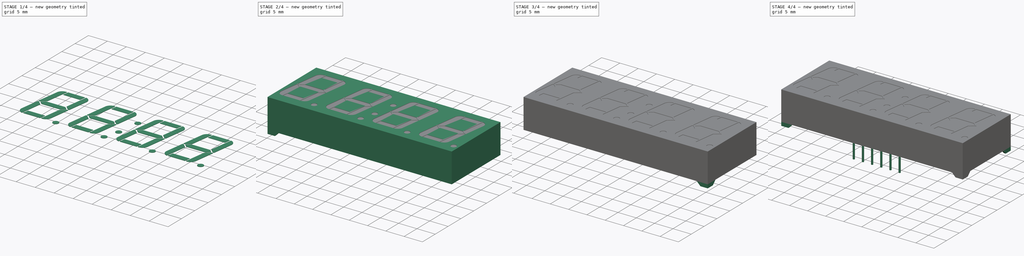
[diagram: build sequence overview — one tinted view per stage of 4, left to right]
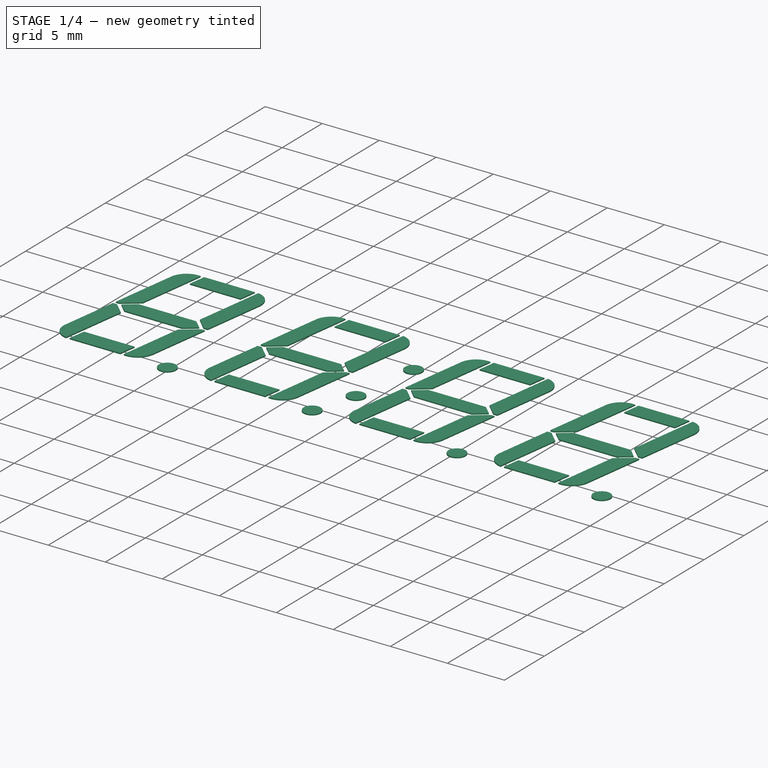
[diagram: stage 1 of 4 — iso view after this stage's code; geometry added in this stage tinted green]
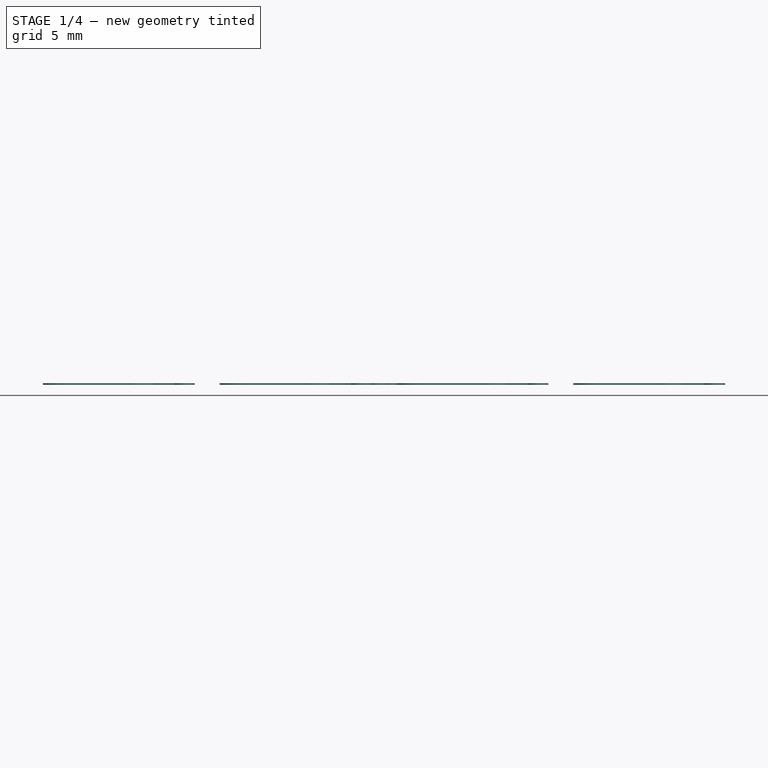
[diagram: stage 1 of 4 — front view after this stage's code; geometry added in this stage tinted green]
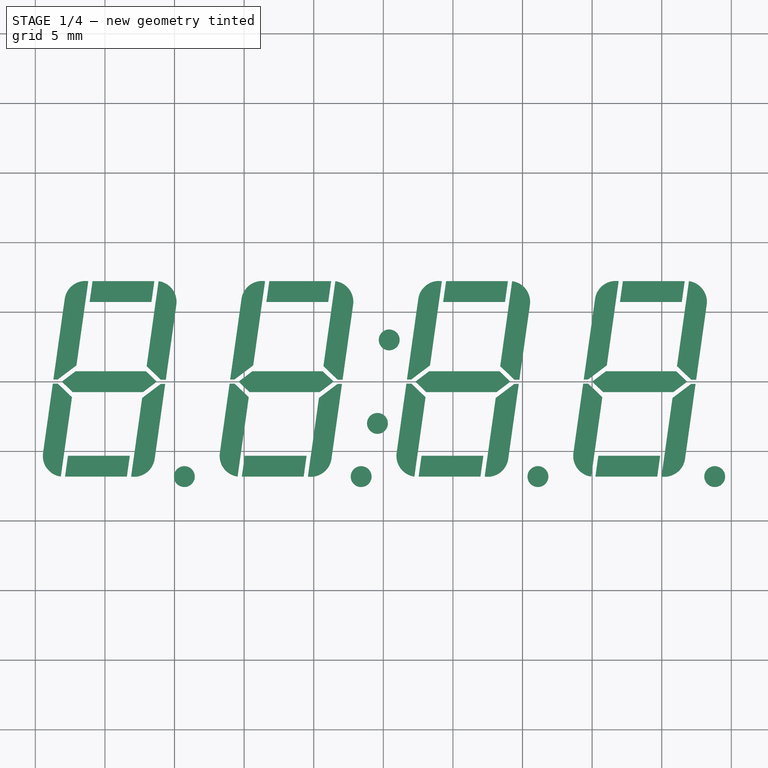
[diagram: stage 1 of 4 — top view after this stage's code; geometry added in this stage tinted green]
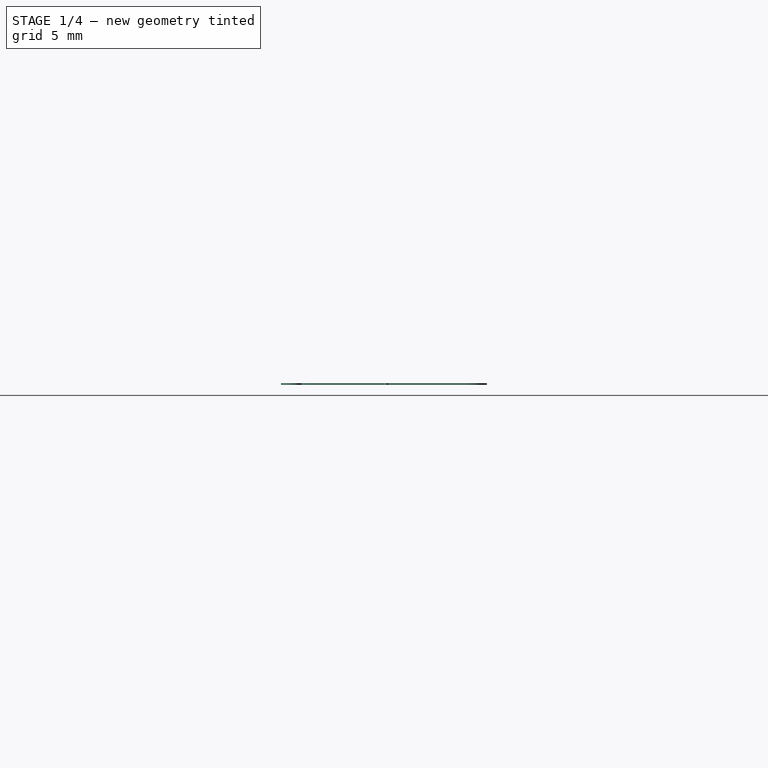
[diagram: stage 1 of 4 — right view after this stage's code; geometry added in this stage tinted green]
FCSTD DOCUMENT  (FreeCAD 0.16R4924 (Git))
Label: Cx56-12
Comment: A 3d model for Kingbright Cx-56-12xxx 7-segment LED Displays. \n\nDatasheet: http://www.kingbrightusa.com/images/catalog/SPEC/CA56-12EWA.pdf\n\nLicense information:\nhttp://www.gnu.org/licenses/gpl.ht... (+106 chars)
License: Dual licensed: GPL v3 or later and CC-by-SA 4.0
LicenseURL: http://www.gnu.org/licenses/gpl.html
objects: Sketcher::SketchObject×7, Part::Extrusion×4, Part::Mirroring×3, PartDesign::Pocket×2, Part::FeaturePython×2, Part::MultiFuse×2, PartDesign::Pad×1, Part::Cut×1
note: 25 computed .brp shape members not serialized (recipe doc carries the construction recipe); baked Part::Feature solids carry a one-line shape summary decoded from their .brp

FEATURE [Sketcher::SketchObject] Sketch
  sketch-geometry (7):
    g0: LineSegment StartX=25.15 StartY=9.5 StartZ=0 EndX=25.15 EndY=-9.5 EndZ=0
    g1: LineSegment StartX=25.15 StartY=-9.5 StartZ=0 EndX=-25.15 EndY=-9.5 EndZ=0
    g2: GeomPoint [constr] X=25.15 Y=9.5 Z=0
    g3: LineSegment StartX=-25.15 StartY=9.5 StartZ=0 EndX=25.15 EndY=9.5 EndZ=0
    g4: LineSegment StartX=-25.15 StartY=-9.5 StartZ=0 EndX=-25.15 EndY=9.5 EndZ=0
    g5: GeomPoint [constr] X=0 Y=9.5 Z=0
    g6: GeomPoint [constr] X=-25.15 Y=0 Z=0
  constraints (17):
    c: Coincident(g0,g1)
    c: Horizontal(g1)
    c: Vertical(g0)
    c: Distance(g1) = 50.3
    c: Distance(g0) = 19
    c: Coincident(g3,g2)
    c: Horizontal(g3)
    c: Vertical(g4)
    c: Coincident(g1,g4)
    c: Coincident(g4,g3)
    c: Coincident(g2,g0)
    c: PointOnObject(g5,g3)
    c: PointOnObject(g5,g-2)
    c: Symmetric(g3,g0,g5)
    c: PointOnObject(g6,g4)
    c: PointOnObject(g6,g-1)
    c: Symmetric(g1,g3,g6)
FEATURE [PartDesign::Pad] Pad  label="Base"
  Length = 8.1
  Length2 = 100
  Sketch = -> Sketch
  Type = 0
FEATURE [Sketcher::SketchObject] Sketch006
  Placement = pos=(0,0,8.1) rot=(0,0,1;0rad)
  Support = -> Pad [Face6]
  sketch-geometry (3):
    g0: Circle CenterX=0.421623 CenterY=3 CenterZ=0 NormalX=0 NormalY=0 NormalZ=1 Radius=0.75
    g1: Circle CenterX=-0.421623 CenterY=-3 CenterZ=0 NormalX=0 NormalY=0 NormalZ=1 Radius=0.75
    g2: LineSegment [constr] StartX=0 StartY=0 StartZ=0 EndX=0.421623 EndY=3 EndZ=0
  constraints (7):
    c: Symmetric(g1,g0,g-1)
    c: Radius(g0) = 0.75
    c: Equal(g0,g1)
    c: DistanceY(g0) = 3
    c: Coincident(g2,g-1)
    c: Coincident(g2,g0)
    c: Angle(g2,g-2) = 0.139626
FEATURE [Part::Extrusion] Extrude002  label="TimeDots"
  Base = -> Sketch006
  Dir = (0,0,-0.1)
  Solid = true
FEATURE [Part::FeaturePython] Array001  # Draft array (typed FeaturePython)
  Angle = 360
  ArrayType = 0
  Axis = (0,0,1)
  Base = -> Sketch001
  Center = (0,0,0)
  Fuse = false
  IntervalAxis = (0,0,0)
  IntervalX = (12.7,0,0)
  IntervalY = (0,1,0)
  IntervalZ = (0,0,0)
  NumberPolar = 1
  NumberX = 4
  NumberY = 1
  NumberZ = 1
  Placement = pos=(-12.7,0,0) rot=(0,0,1;0rad)
FEATURE [Part::Extrusion] Extrude003  label="Digits"
  Base = -> Array001
  Dir = (0,0,-0.1)
  Solid = true
FEATURE [Part::MultiFuse] Fusion  label="DisplayData"
  Shapes = -> [Extrude002,Extrude003]
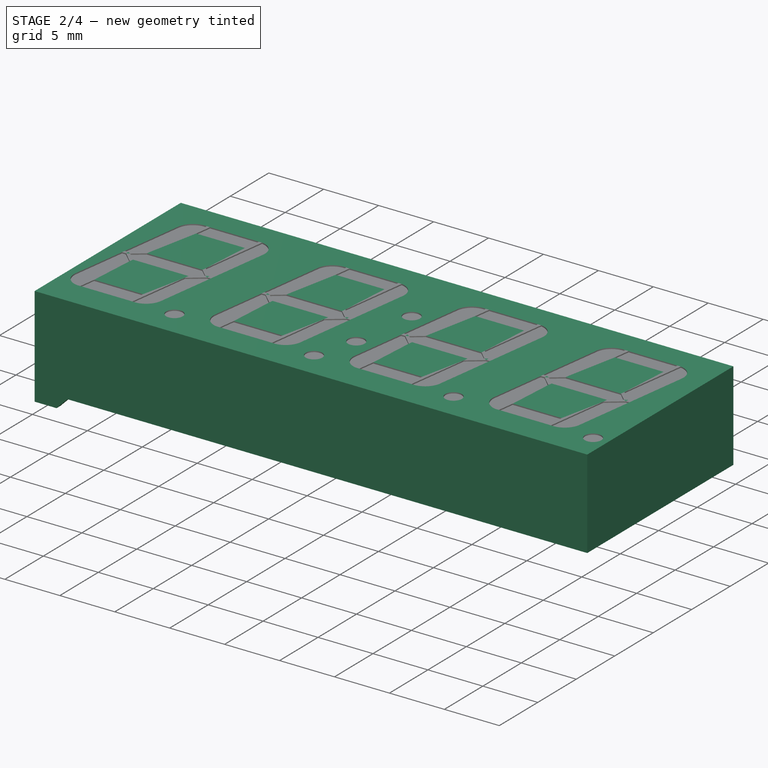
[diagram: stage 2 of 4 — iso view after this stage's code; geometry added in this stage tinted green]
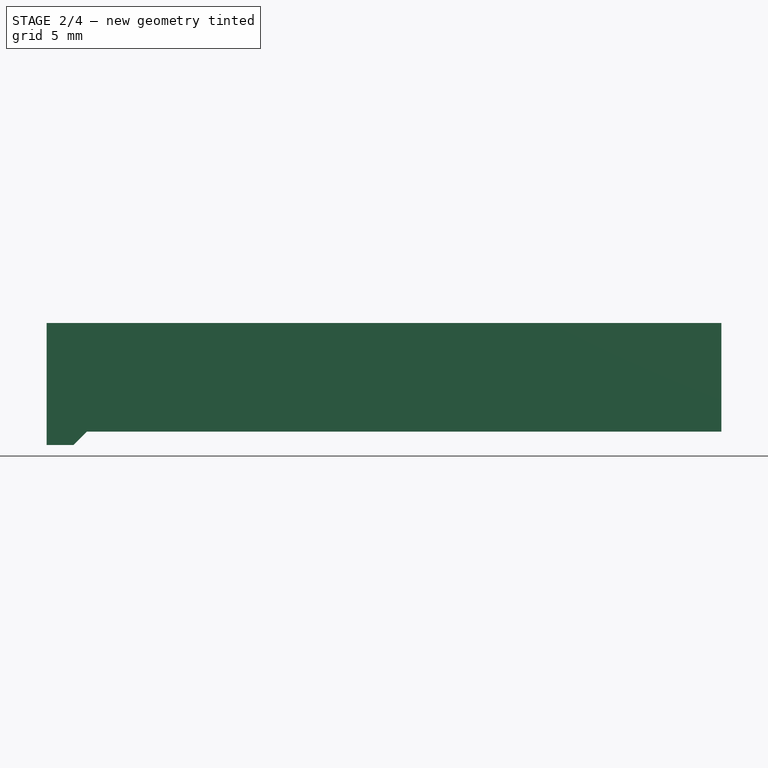
[diagram: stage 2 of 4 — front view after this stage's code; geometry added in this stage tinted green]
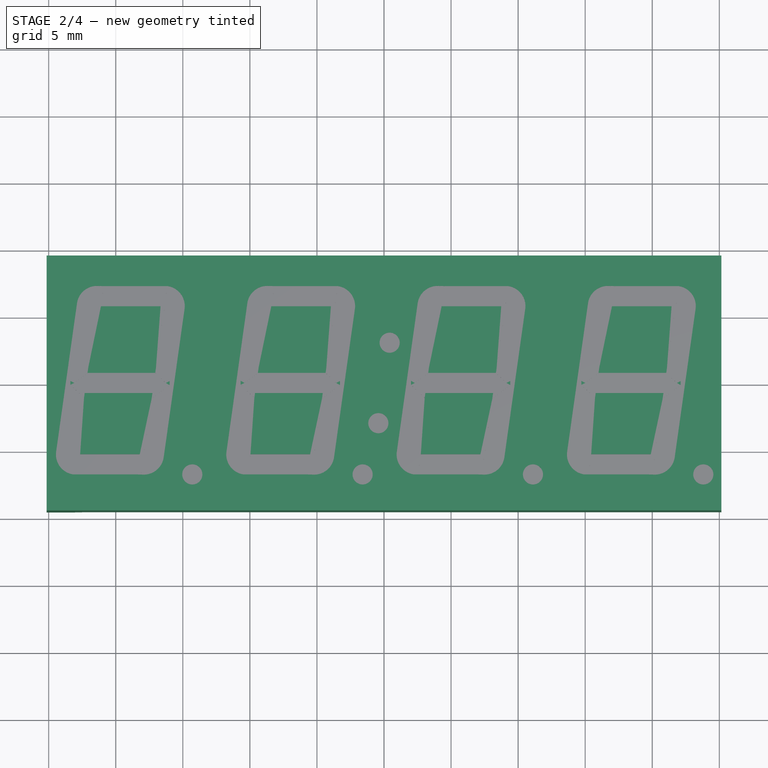
[diagram: stage 2 of 4 — top view after this stage's code; geometry added in this stage tinted green]
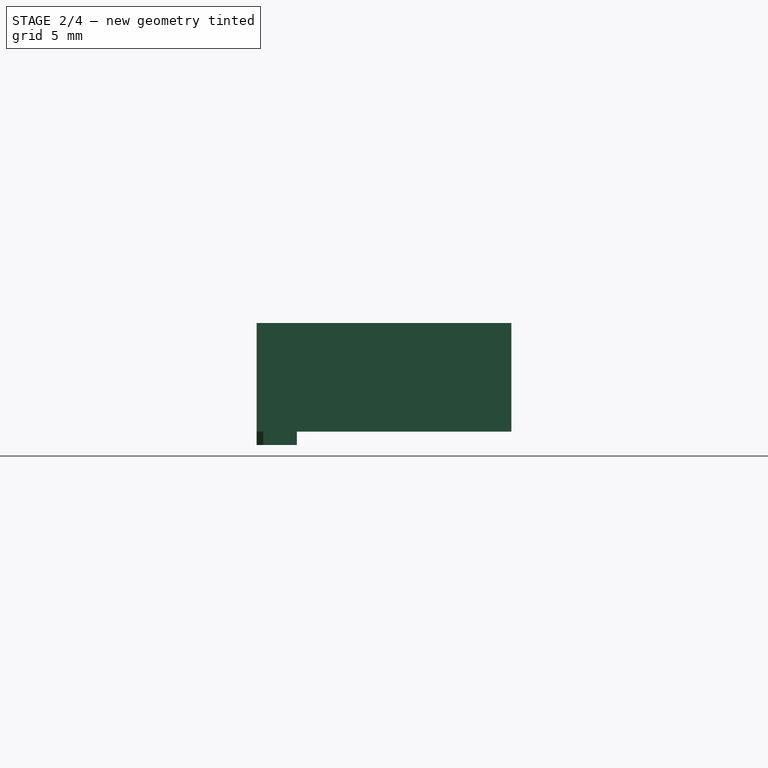
[diagram: stage 2 of 4 — right view after this stage's code; geometry added in this stage tinted green]
FEATURE [Sketcher::SketchObject] Sketch001  label="Digit_Sketch"
  Placement = pos=(0,0,8.1) rot=(0,0,1;0rad)
  Support = -> Pad [Face6]
  sketch-geometry (72):
    g0: LineSegment StartX=-8.19188 StartY=7.22028 StartZ=0 EndX=-3.74864 EndY=7.22028 EndZ=0
    g1: LineSegment StartX=-3.74864 StartY=7.22028 StartZ=0 EndX=-3.95945 EndY=5.72028 EndZ=0
    g2: LineSegment StartX=-3.95945 StartY=5.72028 StartZ=0 EndX=-8.40269 EndY=5.72028 EndZ=0
    g3: LineSegment [constr] StartX=0 StartY=0.3 StartZ=0 EndX=0 EndY=1.8 EndZ=0
    g4: LineSegment StartX=-3.44569 StartY=7.22028 StartZ=0 EndX=-4.3036 EndY=1.11588 EndZ=0
    g5: LineSegment StartX=-2.92592 StartY=0.140642 StartZ=0 EndX=-2.16904 EndY=5.52612 EndZ=0
    g6: ArcOfCircle CenterX=-3.65445 CenterY=5.73488 CenterZ=0 NormalX=0 NormalY=0 NormalZ=1 Radius=1.5 StartAngle=6.14356 EndAngle=7.71436
    g7: LineSegment StartX=-4.3036 StartY=1.11588 StartZ=0 EndX=-3.28354 EndY=0.140642 EndZ=0
    g8: LineSegment StartX=-3.28354 StartY=0.140642 StartZ=0 EndX=-2.92592 EndY=0.140642 EndZ=0
    g9: LineSegment [constr] StartX=-3.65445 StartY=5.73488 StartZ=0 EndX=-2.16904 EndY=5.52612 EndZ=0
    g10: LineSegment [constr] StartX=-3.74864 StartY=7.22028 StartZ=0 EndX=-3.45156 EndY=7.17853 EndZ=0
    g11: LineSegment [constr] StartX=0 StartY=0.3 StartZ=0 EndX=0 EndY=0 EndZ=0
    g12: LineSegment StartX=-9.40416 StartY=0.75 StartZ=0 EndX=-4.35503 EndY=0.75 EndZ=0
    g13: LineSegment StartX=-4.35503 StartY=0.75 StartZ=0 EndX=-3.57055 EndY=0 EndZ=0
    g14: LineSegment StartX=-3.57055 StartY=0 StartZ=0 EndX=-4.56584 EndY=-0.75 EndZ=0
    g15: LineSegment StartX=-4.56584 StartY=-0.75 StartZ=0 EndX=-9.61497 EndY=-0.75 EndZ=0
    g16: LineSegment StartX=-9.61497 StartY=-0.75 StartZ=0 EndX=-10.3994 EndY=0 EndZ=0
    g17: LineSegment StartX=-10.3994 StartY=0 StartZ=0 EndX=-9.40416 EndY=0.75 EndZ=0
    g18: LineSegment [constr] StartX=-4.35503 StartY=0.75 StartZ=0 EndX=-4.35503 EndY=-0.75 EndZ=0
    g19: LineSegment StartX=-8.49483 StartY=7.22028 StartZ=0 EndX=-9.34512 EndY=1.17014 EndZ=0
    g20: LineSegment StartX=-9.34512 StartY=1.17014 StartZ=0 EndX=-10.6865 EndY=0.159358 EndZ=0
    g21: LineSegment StartX=-10.6865 StartY=0.159358 StartZ=0 EndX=-11.0019 EndY=0.159358 EndZ=0
    g22: LineSegment StartX=-11.0019 StartY=0.159358 StartZ=0 EndX=-10.189 EndY=5.94364 EndZ=0
    g23: LineSegment [constr] StartX=-10.189 StartY=5.94364 StartZ=0 EndX=-8.70358 EndY=5.73488 EndZ=0
    g24: ArcOfCircle CenterX=-8.70358 CenterY=5.73488 CenterZ=0 NormalX=0 NormalY=0 NormalZ=1 Radius=1.5 StartAngle=1.43117 EndAngle=3.00197
    g25: LineSegment StartX=-4.62488 StartY=-1.17014 StartZ=0 EndX=-3.28354 EndY=-0.159358 EndZ=0
    g26: LineSegment StartX=-3.28354 StartY=-0.159358 StartZ=0 EndX=-2.96809 EndY=-0.159358 EndZ=0
    g27: LineSegment StartX=-2.96809 StartY=-0.159358 StartZ=0 EndX=-3.72496 EndY=-5.54483 EndZ=0
    g28: LineSegment StartX=-4.62488 StartY=-1.17014 StartZ=0 EndX=-5.41913 EndY=-6.82147 EndZ=0
    g29: LineSegment [constr] StartX=-3.72496 StartY=-5.54483 StartZ=0 EndX=-5.21037 EndY=-5.33607 EndZ=0
    g30: ArcOfCircle CenterX=-5.21037 CenterY=-5.33607 CenterZ=0 NormalX=0 NormalY=0 NormalZ=1 Radius=1.5 StartAngle=4.57276 EndAngle=6.14356
    g31: LineSegment [constr] StartX=-2.92592 StartY=0.140642 StartZ=0 EndX=-2.96809 EndY=-0.159358 EndZ=0
    g32: LineSegment [constr] StartX=-4.35503 StartY=0.75 StartZ=0 EndX=-4.35503 EndY=0 EndZ=0
    g33: LineSegment [constr] StartX=-4.35503 StartY=0 StartZ=0 EndX=-4.35503 EndY=-0.75 EndZ=0
    g34: LineSegment StartX=-5.72207 StartY=-6.82147 StartZ=0 EndX=-10.1653 EndY=-6.82147 EndZ=0
    g35: LineSegment StartX=-10.1653 StartY=-6.82147 StartZ=0 EndX=-9.95451 EndY=-5.32147 EndZ=0
    g36: LineSegment StartX=-9.95451 StartY=-5.32147 StartZ=0 EndX=-5.51126 EndY=-5.32147 EndZ=0
    g37: LineSegment StartX=-5.51126 StartY=-5.32147 StartZ=0 EndX=-5.72207 EndY=-6.82147 EndZ=0
    g38: LineSegment [constr] StartX=-9.95451 StartY=-5.32147 StartZ=0 EndX=-9.95451 EndY=-6.82147 EndZ=0
    g39: LineSegment [constr] StartX=-5.41913 StartY=-6.82147 StartZ=0 EndX=-5.72207 EndY=-6.82147 EndZ=0
    g40: ArcOfCircle CenterX=-10.2595 CenterY=-5.33607 CenterZ=0 NormalX=0 NormalY=0 NormalZ=1 Radius=1.5 StartAngle=3.00197 EndAngle=4.57276
    g41: LineSegment StartX=-10.4683 StartY=-6.82147 StartZ=0 EndX=-9.6664 EndY=-1.11588 EndZ=0
    g42: LineSegment StartX=-9.6664 StartY=-1.11588 StartZ=0 EndX=-10.6865 EndY=-0.140642 EndZ=0
    g43: LineSegment StartX=-10.6865 StartY=-0.140642 StartZ=0 EndX=-11.0441 EndY=-0.140642 EndZ=0
    g44: LineSegment StartX=-11.0441 StartY=-0.140642 StartZ=0 EndX=-11.7449 EndY=-5.12731 EndZ=0
    g45: LineSegment [constr] StartX=-11.7449 StartY=-5.12731 StartZ=0 EndX=-10.2595 EndY=-5.33607 EndZ=0
    g46: LineSegment [constr] StartX=-10.1653 StartY=-6.82147 StartZ=0 EndX=-10.4624 EndY=-6.77972 EndZ=0
    g47: LineSegment [constr] StartX=-10.1653 StartY=-6.82147 StartZ=0 EndX=-10.4683 EndY=-6.82147 EndZ=0
    g48: Circle CenterX=-1.5937 CenterY=-6.82147 CenterZ=0 NormalX=0 NormalY=0 NormalZ=1 Radius=0.75
    g49: LineSegment [constr] StartX=-5.41913 StartY=-6.82147 StartZ=0 EndX=-1.5937 EndY=-6.82147 EndZ=0
    g50: GeomPoint [constr] X=-2.31069 Y=0.177482 Z=0
    g51: LineSegment [constr] StartX=-8.19188 StartY=7.22028 StartZ=0 EndX=-8.19188 EndY=5.72028 EndZ=0
    g52: LineSegment [constr] StartX=-8.19774 StartY=7.17853 StartZ=0 EndX=-8.49483 EndY=7.22028 EndZ=0
    g53: LineSegment [constr] StartX=-8.19188 StartY=7.22028 StartZ=0 EndX=-8.49483 EndY=7.22028 EndZ=0
    g54: LineSegment [constr] StartX=-3.74864 StartY=7.22028 StartZ=0 EndX=-3.44569 EndY=7.22028 EndZ=0
    g55: LineSegment [constr] StartX=-5.41913 StartY=-6.82147 StartZ=0 EndX=-5.71621 EndY=-6.77972 EndZ=0
    g56: LineSegment [constr] StartX=-1.5937 StartY=-6.82147 StartZ=0 EndX=-0.635 EndY=0 EndZ=0
    g57: LineSegment [constr] StartX=-11.0441 StartY=-0.140642 StartZ=0 EndX=-11.0019 EndY=0.159358 EndZ=0
    g58: LineSegment [constr] StartX=-11.0019 StartY=0.159358 StartZ=0 EndX=-11.0019 EndY=-0.140642 EndZ=0
    g59: LineSegment [constr] StartX=-2.96809 StartY=-0.159358 StartZ=0 EndX=-2.96809 EndY=0.140642 EndZ=0
    g60: LineSegment [constr] StartX=-10.3994 StartY=0 StartZ=0 EndX=-10.58 EndY=0.239591 EndZ=0
    g61: LineSegment [constr] StartX=-10.3994 StartY=0 StartZ=0 EndX=-10.6068 EndY=-0.216843 EndZ=0
    g62: LineSegment [constr] StartX=-3.57055 StartY=0 StartZ=0 EndX=-3.36324 EndY=0.216843 EndZ=0
    g63: LineSegment [constr] StartX=-3.57055 StartY=0 StartZ=0 EndX=-3.39001 EndY=-0.239591 EndZ=0
    g64: LineSegment StartX=-8.19188 StartY=7.22028 StartZ=0 EndX=-8.40269 EndY=5.72028 EndZ=0
    g65: LineSegment [constr] StartX=-9.6664 StartY=-1.11588 StartZ=0 EndX=-9.61497 EndY=-0.75 EndZ=0
    g66: LineSegment [constr] StartX=-9.34512 StartY=1.17014 StartZ=0 EndX=-9.40416 EndY=0.75 EndZ=0
    g67: LineSegment [constr] StartX=-4.3036 StartY=1.11588 StartZ=0 EndX=-4.35503 EndY=0.75 EndZ=0
    g68: LineSegment [constr] StartX=-4.62488 StartY=-1.17014 StartZ=0 EndX=-4.56584 EndY=-0.75 EndZ=0
    g69: LineSegment [constr] StartX=-11.0243 StartY=0 StartZ=0 EndX=-6.985 EndY=0 EndZ=0
    g70: LineSegment [constr] StartX=-6.985 StartY=0 StartZ=0 EndX=-2.94569 EndY=0 EndZ=0
    g71: LineSegment [constr] StartX=-10.6865 StartY=0.159358 StartZ=0 EndX=-10.6865 EndY=-0.140642 EndZ=0
  constraints (202):
    c: Coincident(g1,g0)
    c: Coincident(g2,g1)
    c: Distance(g3) = 1.5  'Led_width'
    c: Coincident(g6,g5)
    c: Coincident(g6,g4)
    c: Coincident(g7,g4)
    c: Coincident(g8,g7)
    c: Coincident(g8,g5)
    c: Coincident(g10,g0)
    c: Distance(g11) = 0.3  'Incline'
    c: Coincident(g12,g13)
    c: Coincident(g16,g17)
    c: Coincident(g17,g12)
    c: Coincident(g18,g12)
    c: Coincident(g19,g20)
    c: Coincident(g20,g21)
    c: Coincident(g21,g22)
    c: Coincident(g23,g22)
    c: Coincident(g24,g22)
    c: Coincident(g19,g24)
    c: Distance(g22,g5) = 8  'Width'
    c: Coincident(g25,g26)
    c: Coincident(g26,g27)
    c: Coincident(g28,g25)
    c: Coincident(g29,g27)
    c: Coincident(g30,g27)
    c: Coincident(g31,g5)
    c: Coincident(g31,g26)
    c: Coincident(g32,g12)
    c: Coincident(g33,g32)
    c: Coincident(g18,g33)
    c: Coincident(g34,g35)
    c: Coincident(g35,g36)
    c: Coincident(g37,g34)
    c: Coincident(g37,g36)
    c: Coincident(g38,g35)
    c: Coincident(g39,g34)
    c: Coincident(g41,g40)
    c: Coincident(g41,g42)
    c: Coincident(g42,g43)
    c: Coincident(g43,g44)
    c: Coincident(g44,g40)
    c: Coincident(g44,g45)
    c: Coincident(g47,g40)
    c: Coincident(g14,g15)
    c: Coincident(g16,g15)
    c: Radius(g48) = 0.75  'Dot_radius'
    c: Coincident(g49,g48)
    c: Coincident(g53,g0)
    c: Coincident(g53,g19)
    c: Coincident(g54,g4)
    c: Coincident(g56,g48)
    c: Angle(g56,g-2) = 0.139626  'Rotation'
    c: Parallel(g27,g56)
    c: Parallel(g28,g56)
    c: Parallel(g37,g56)
    c: Parallel(g35,g56)
    c: Parallel(g41,g56)
    c: Parallel(g56,g44)
    c: Parallel(g31,g56)
    c: Parallel(g5,g56)
    c: Parallel(g4,g56)
    c: Parallel(g1,g56)
    c: Parallel(g19,g56)
    c: Parallel(g22,g56)
    c: Equal(g51,g3)
    c: Equal(g9,g3)
    c: Equal(g18,g3)
    c: Equal(g29,g3)
    c: Equal(g38,g3)
    c: Equal(g45,g3)
    c: Equal(g23,g3)
    c: Horizontal(g34)
    c: Horizontal(g39)
    c: Horizontal(g47)
    c: Horizontal(g36)
    c: Horizontal(g15)
    c: Horizontal(g12)
    c: Horizontal(g43)
    c: Horizontal(g21)
    c: Horizontal(g26)
    c: Horizontal(g8)
    c: Horizontal(g2)
    c: Horizontal(g0)
    c: Vertical(g51)
    c: Vertical(g38)
    c: Vertical(g18)
    c: Equal(g55,g11)
    c: Equal(g10,g11)
    c: Equal(g52,g11)
    c: Equal(g46,g11)
    c: Perpendicular(g27,g29)
    c: Perpendicular(g22,g23)
    c: Perpendicular(g44,g45)
    c: PointOnObject(g38,g34)
    c: Parallel(g14,g25)
    c: Parallel(g13,g7)
    c: Parallel(g17,g20)
    c: PointOnObject(g13,g-1)
    c: Parallel(g42,g16)
    c: PointOnObject(g46,g41)
    c: Coincident(g46,g34)
    c: Perpendicular(g41,g46)
    c: PointOnObject(g55,g37)
    c: Perpendicular(g37,g55)
    c: Horizontal(g49)
    c: Horizontal(g54)
    c: PointOnObject(g10,g4)
    c: Horizontal(g53)
    c: PointOnObject(g51,g2)
    c: Coincident(g9,g5)
    c: DistanceY(g28,g10) = 14  'Height'
    c: PointOnObject(g16,g-1)
    c: Coincident(g57,g43)
    c: Coincident(g57,g21)
    c: Parallel(g57,g56)
    c: Coincident(g58,g21)
    c: PointOnObject(g58,g43)
    c: Vertical(g58)
    c: PointOnObject(g59,g8)
    c: Vertical(g59)
    c: Equal(g59,g11)
    c: Equal(g58,g11)
    c: PointOnObject(g18,g15)
    c: Equal(g32,g33)
    c: Equal(g16,g13)
    c: Equal(g42,g7)
    c: Equal(g7,g42)
    c: PointOnObject(g60,g20)
    c: Perpendicular(g20,g60)
    c: Equal(g60,g11)
    c: Coincident(g61,g16)
    c: Perpendicular(g16,g61)
    c: PointOnObject(g61,g42)
    c: Equal(g61,g11)
    c: Coincident(g62,g13)
    c: PointOnObject(g62,g7)
    c: Perpendicular(g7,g62)
    c: Equal(g62,g11)
    c: Coincident(g63,g13)
    c: PointOnObject(g63,g25)
    c: Perpendicular(g14,g63)
    c: Coincident(g64,g0)
    c: Coincident(g64,g2)
    c: Parallel(g64,g56)
    c: PointOnObject(g52,g64)
    c: Perpendicular(g64,g52)
    c: Equal(g63,g11)
    c: Coincident(g65,g41)
    c: Coincident(g65,g15)
    c: Parallel(g65,g41)
    c: Coincident(g66,g19)
    c: Parallel(g66,g19)
    c: Coincident(g66,g12)
    c: Coincident(g67,g4)
    c: Coincident(g67,g12)
    c: Parallel(g67,g4)
    c: Coincident(g68,g25)
    c: Coincident(g68,g14)
    c: Parallel(g68,g28)
    c: PointOnObject(g69,g57)
    c: PointOnObject(g69,g-1)
    c: Coincident(g70,g69)
    c: PointOnObject(g70,g31)
    c: PointOnObject(g70,g-1)
    c: PointOnObject(g69,g-1)
    c: Equal(g69,g70)
    c: Coincident(g29,g30)
    c: Coincident(g9,g6)
    c: Coincident(g23,g24)
    c: PointOnObject(g23,g19)
    c: Perpendicular(g4,g9)
    c: PointOnObject(g6,g4)
    c: Perpendicular(g10,g4)
    c: Coincident(g40,g45)
    c: PointOnObject(g40,g41)
    c: PointOnObject(g29,g28)
    c: Coincident(g71,g20)
    c: Coincident(g71,g42)
    c: Vertical(g71)
    c: Angle(g25,g68) = 0.785398
    c: Equal(g27,g5)
    c: Vertical(g11)
    c: Vertical(g3)
    c: PointOnObject(g32,g70)
    c: Vertical(g32)
    c: DistanceX(g69,g56) = 6.35  'X_shift'
    c: PointOnObject(g56,g-1)
    c: Coincident(g3,g11)
    c: Coincident(g11,g-1)
    c: DistanceX(g-1,g56) = -0.635  'X_extra_shift'
    c: Coincident(g54,g1)
    c: Coincident(g14,g62)
    c: Coincident(g60,g17)
    c: Coincident(g52,g24)
    c: Coincident(g59,g27)
    c: Coincident(g55,g30)
    c: Coincident(g47,g35)
    c: Coincident(g55,g39)
    c: Coincident(g55,g49)
    c: Coincident(g51,g53)
    c: Coincident(g28,g30)
FEATURE [Sketcher::SketchObject] Sketch002
  ExternalGeometry = -> [Pad]
  Placement = pos=(0,0,0) rot=(1,0,0;3.14159rad)
  sketch-geometry (6):
    g0: LineSegment StartX=-25.15 StartY=6.5 StartZ=0 EndX=-24.65 EndY=6.5 EndZ=0
    g1: LineSegment StartX=-24.65 StartY=6.5 StartZ=0 EndX=-24.65 EndY=9 EndZ=0
    g2: LineSegment StartX=-24.65 StartY=9 StartZ=0 EndX=-22.15 EndY=9 EndZ=0
    g3: LineSegment StartX=-22.15 StartY=9 StartZ=0 EndX=-22.15 EndY=9.5 EndZ=0
    g4: LineSegment StartX=-22.15 StartY=9.5 StartZ=0 EndX=-25.15 EndY=9.5 EndZ=0
    g5: LineSegment StartX=-25.15 StartY=9.5 StartZ=0 EndX=-25.15 EndY=6.5 EndZ=0
  constraints (16):
    c: Horizontal(g0)
    c: Coincident(g0,g1)
    c: Vertical(g1)
    c: Coincident(g1,g2)
    c: Horizontal(g2)
    c: Coincident(g2,g3)
    c: Coincident(g3,g4)
    c: Horizontal(g4)
    c: Coincident(g4,g5)
    c: Coincident(g5,g0)
    c: Vertical(g5)
    c: Vertical(g3)
    c: DistanceX(g4,g3) = 3  'Leg_width'
    c: Equal(g4,g5)
    c: Coincident(g4,g-3)
    c: Coincident(g1,g-4)
FEATURE [Part::Extrusion] Extrude  label="Leg_full"
  Base = -> Sketch002
  Dir = (0,0,-1)
  Solid = true
FEATURE [Sketcher::SketchObject] Sketch003
  ExternalGeometry = -> [Extrude]
  Placement = pos=(0,-9,0) rot=(0,0.707107,0.707107;3.14159rad)
  Support = -> Extrude [Face3]
  sketch-geometry (3):
    g0: LineSegment StartX=22.15 StartY=0 StartZ=0 EndX=23.15 EndY=-1 EndZ=0
    g1: LineSegment StartX=23.15 StartY=-1 StartZ=0 EndX=22.15 EndY=-1 EndZ=0
    g2: LineSegment StartX=22.15 StartY=-1 StartZ=0 EndX=22.15 EndY=0 EndZ=0
  constraints (8):
    c: Coincident(g0,g1)
    c: Coincident(g0,g2)
    c: Coincident(g1,g2)
    c: Horizontal(g1)
    c: Vertical(g2)
    c: Equal(g1,g2)
    c: Coincident(g-3,g1)
    c: Coincident(g0,g-3)
FEATURE [PartDesign::Pocket] Pocket  label="Leg_pocket_1"
  Length = 5
  Sketch = -> Sketch003
  Type = 1
FEATURE [Part::Cut] Cut
  Base = -> Pad
  Tool = -> Fusion
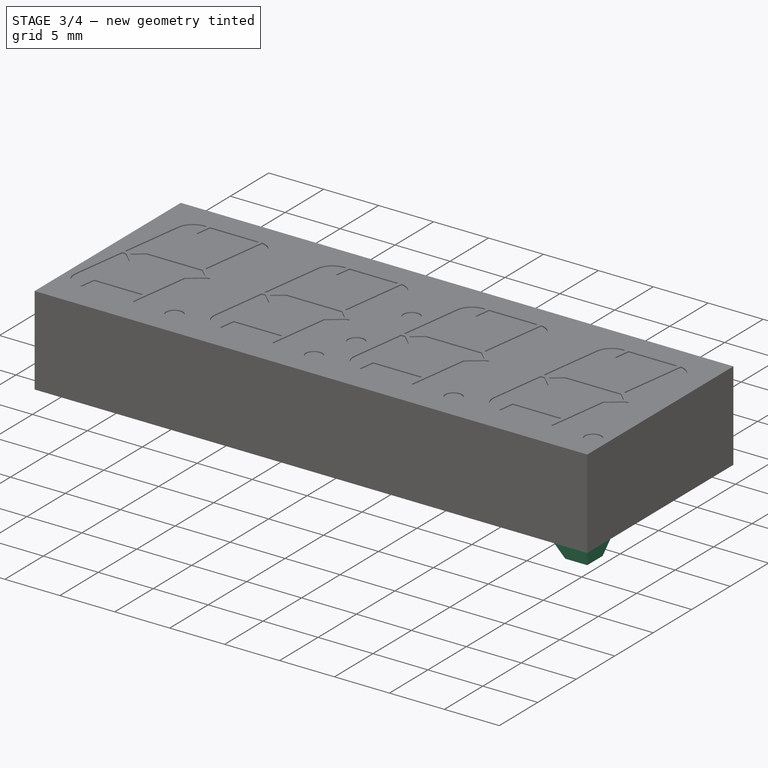
[diagram: stage 3 of 4 — iso view after this stage's code; geometry added in this stage tinted green]
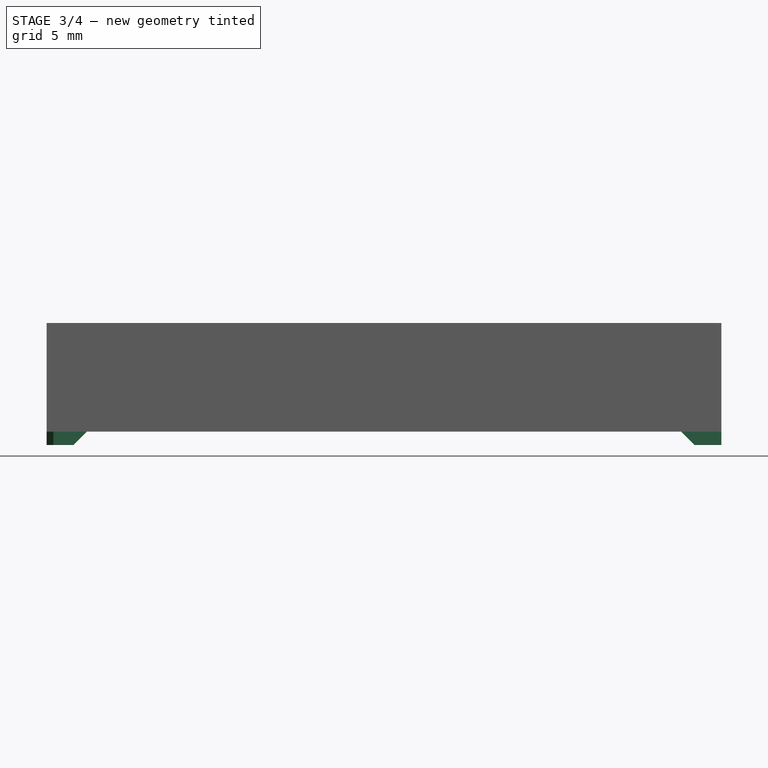
[diagram: stage 3 of 4 — front view after this stage's code; geometry added in this stage tinted green]
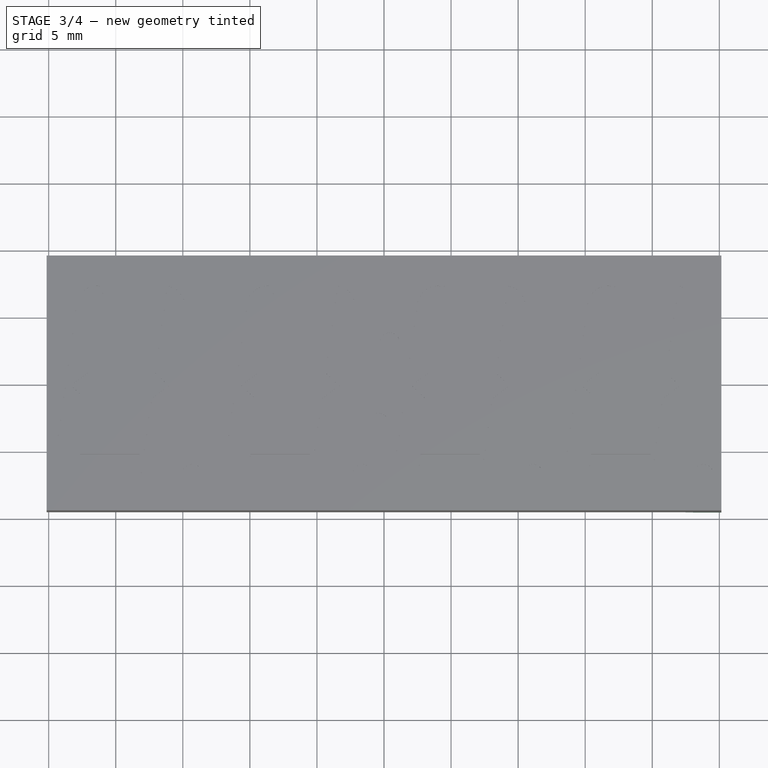
[diagram: stage 3 of 4 — top view after this stage's code; geometry added in this stage tinted green]
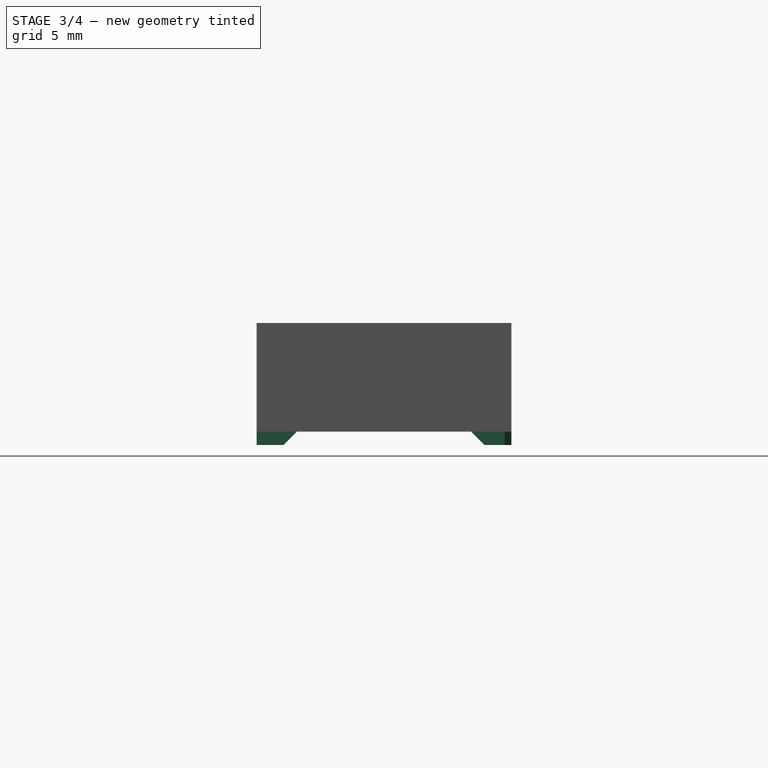
[diagram: stage 3 of 4 — right view after this stage's code; geometry added in this stage tinted green]
FEATURE [Sketcher::SketchObject] Sketch004
  ExternalGeometry = -> [Pocket]
  Placement = pos=(-24.65,0,0) rot=(0.57735,0.57735,0.57735;2.0944rad)
  Support = -> Pocket [Face3]
  sketch-geometry (3):
    g0: LineSegment StartX=-6.5 StartY=0 StartZ=0 EndX=-6.5 EndY=-1 EndZ=0
    g1: LineSegment StartX=-6.5 StartY=-1 StartZ=0 EndX=-7.5 EndY=-1 EndZ=0
    g2: LineSegment StartX=-7.5 StartY=-1 StartZ=0 EndX=-6.5 EndY=0 EndZ=0
  constraints (8):
    c: Vertical(g0)
    c: Coincident(g0,g1)
    c: Horizontal(g1)
    c: Coincident(g1,g2)
    c: Coincident(g2,g0)
    c: Equal(g0,g1)
    c: Coincident(g0,g-3)
    c: Coincident(g0,g-3)
FEATURE [PartDesign::Pocket] Pocket001  label="Leg_cutted"
  Length = 5
  Sketch = -> Sketch004
  Type = 1
FEATURE [Part::Mirroring] Part__Mirroring  label="Leg_cutted (Mirror #1)"
  Base = (0,0,0)
  Normal = (0,1,0)
  Source = -> Pocket001
FEATURE [Part::Mirroring] Part__Mirroring002  label="Leg_cutted (Mirror #3)"
  Base = (0,0,0)
  Normal = (1,0,0)
  Source = -> Pocket001
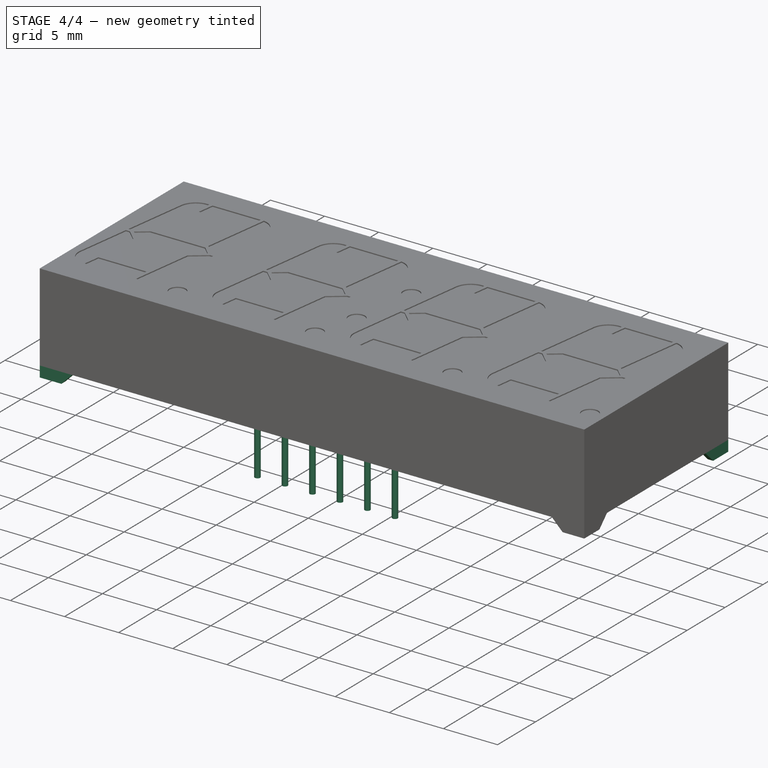
[diagram: stage 4 of 4 — iso view after this stage's code; geometry added in this stage tinted green]
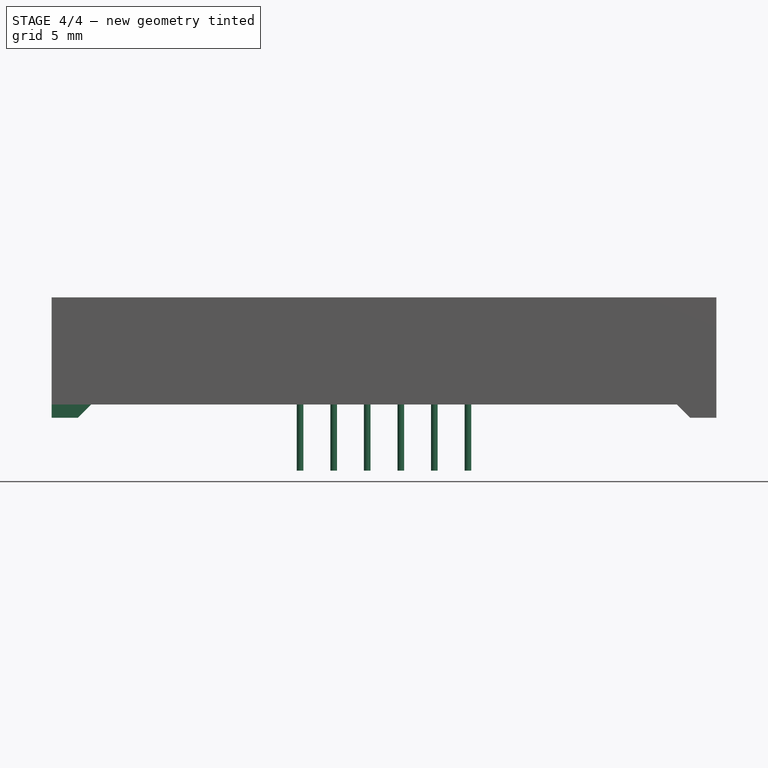
[diagram: stage 4 of 4 — front view after this stage's code; geometry added in this stage tinted green]
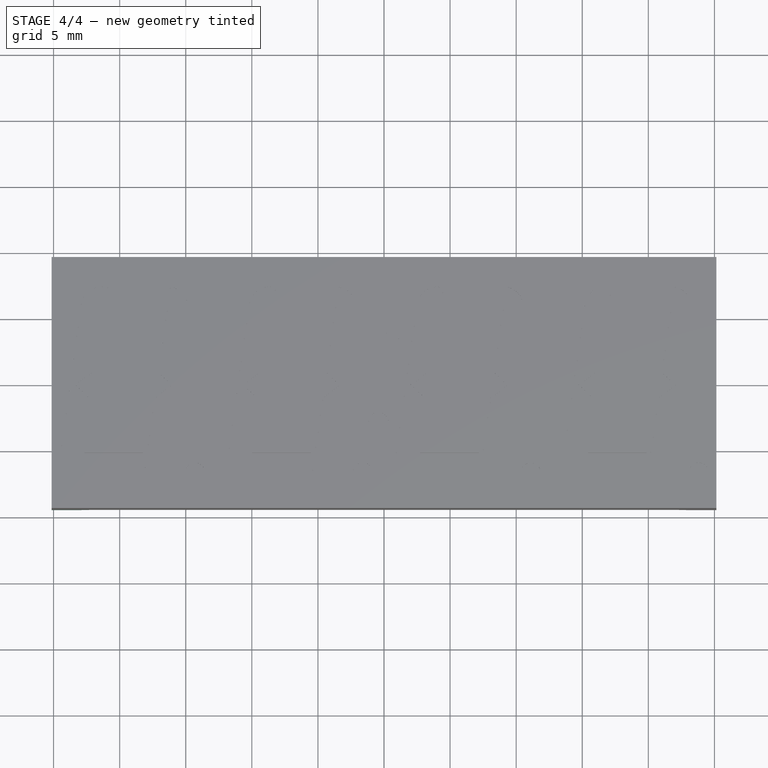
[diagram: stage 4 of 4 — top view after this stage's code; geometry added in this stage tinted green]
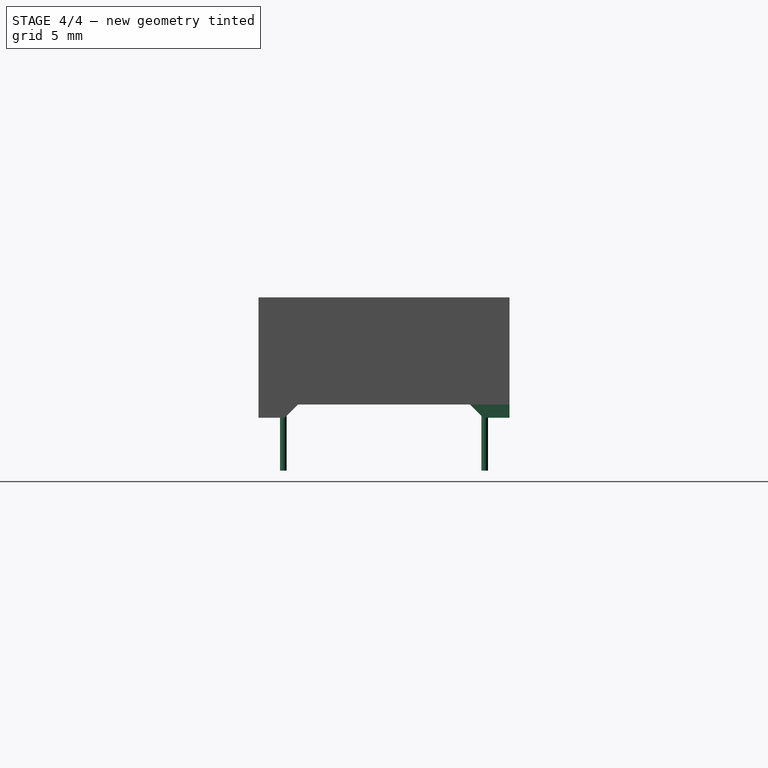
[diagram: stage 4 of 4 — right view after this stage's code; geometry added in this stage tinted green]
FEATURE [Part::Mirroring] Part__Mirroring001  label="Leg_cutted (Mirror #2)"
  Base = (0,0,0)
  Normal = (1,0,0)
  Source = -> Part__Mirroring
FEATURE [Sketcher::SketchObject] Sketch005  label="PinSketch"
  Placement = pos=(0,0,-1) rot=(1,0,0;3.14159rad)
  sketch-geometry (2):
    g0: Circle CenterX=0 CenterY=0 CenterZ=0 NormalX=0 NormalY=0 NormalZ=1 Radius=0.25
    g1: LineSegment [constr] StartX=0 StartY=0.25 StartZ=0 EndX=0 EndY=-0.25 EndZ=0
  constraints (6):
    c: PointOnObject(g1,g0)
    c: PointOnObject(g1,g0)
    c: Vertical(g1)
    c: PointOnObject(g0,g1)
    c: Distance(g1) = 0.5  'PinDia'
    c: Coincident(g0,g-1)
FEATURE [Part::Extrusion] Extrude001
  Base = -> Sketch005
  Dir = (0,0,-6)
  Placement = pos=(-6.35,-7.62,2) rot=(0,0,1;0rad)
  Solid = true
FEATURE [Part::FeaturePython] Array  label="Pins"  # Draft array (typed FeaturePython)
  Angle = 360
  ArrayType = 0
  Axis = (0,0,1)
  Base = -> Extrude001
  Center = (0,0,0)
  Fuse = false
  IntervalAxis = (1,0,0)
  IntervalX = (2.54,0,0)
  IntervalY = (0,15.24,0)
  IntervalZ = (0,0,0)
  NumberPolar = 1
  NumberX = 6
  NumberY = 2
  NumberZ = 1
FEATURE [Part::MultiFuse] Fusion001  label="Legs"
  Shapes = -> [Pocket001,Part__Mirroring,Part__Mirroring001,Part__Mirroring002]
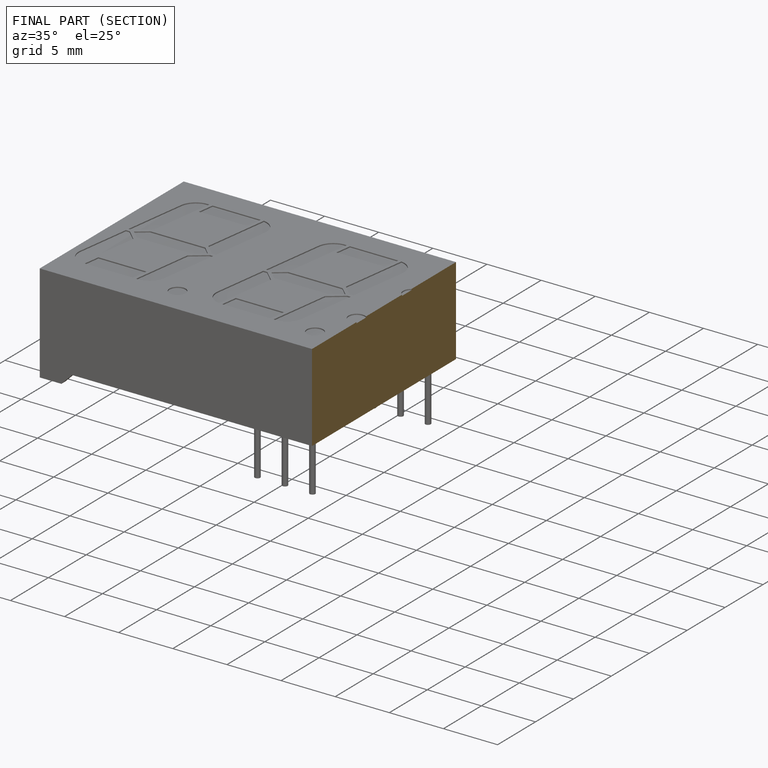
[diagram: finished part — half-section view (interior)]
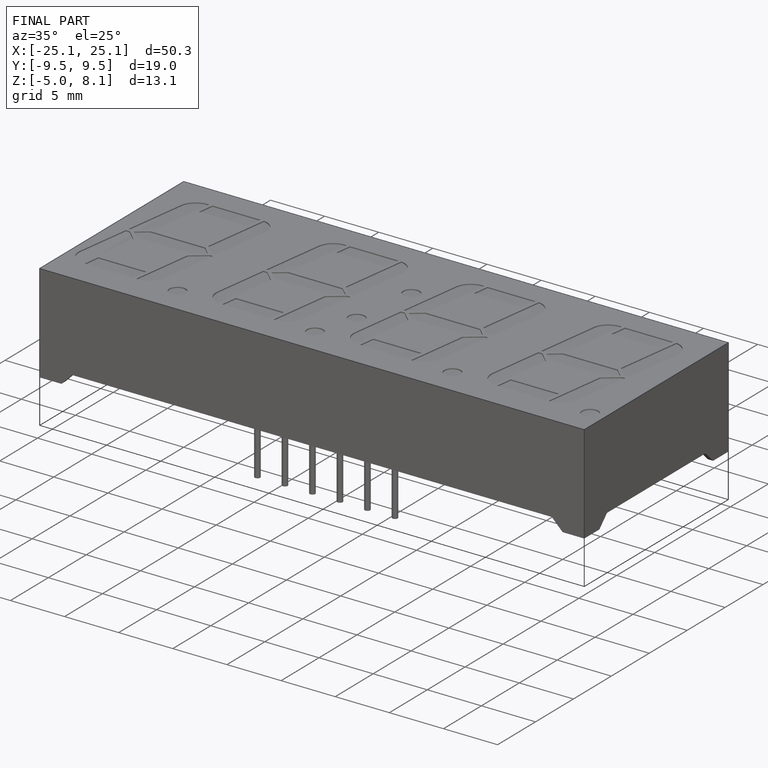
[diagram: finished part — iso view with bounding-box wireframe]
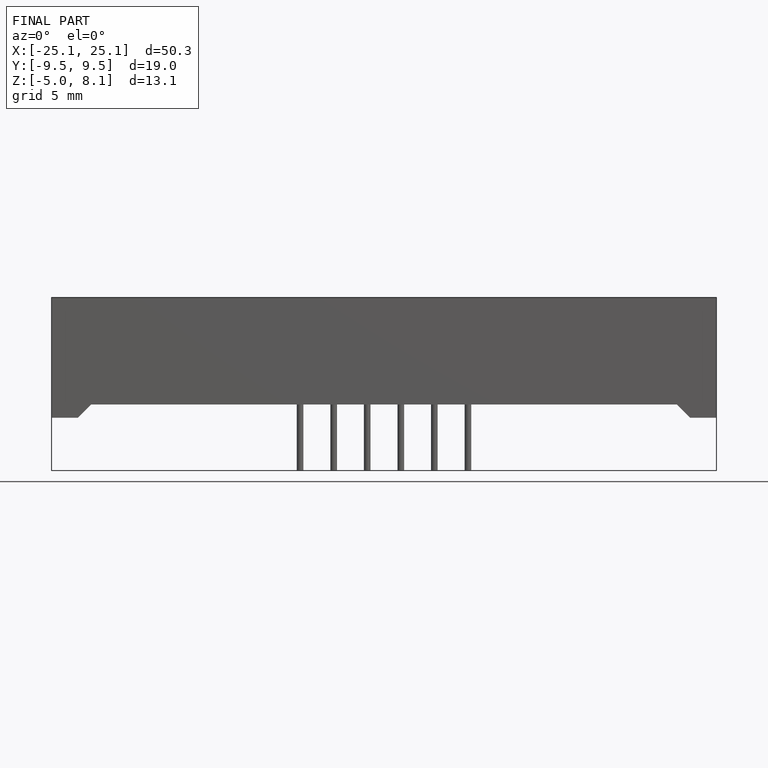
[diagram: finished part — front view with bounding-box wireframe]
